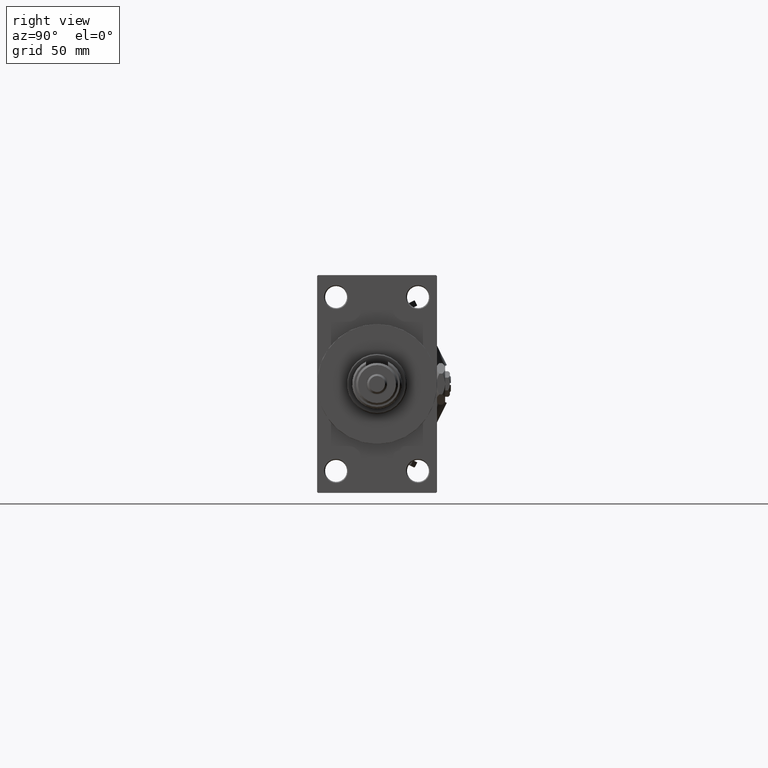
[diagram: clean part render]
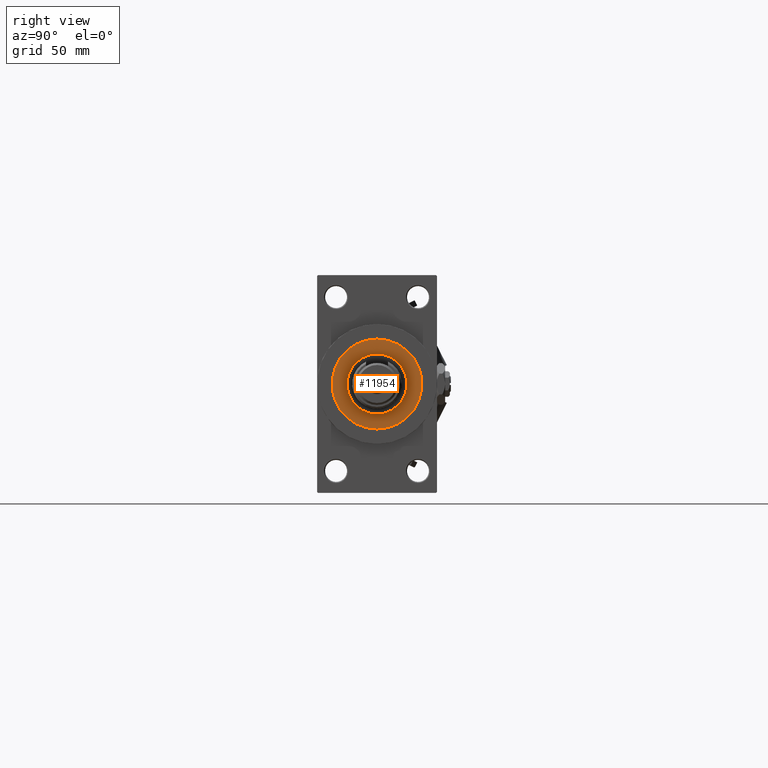
[diagram: same view with one face highlighted and labeled with its STEP entity id]
A machine part, right view. The second image highlights one B-rep face of the part: STEP entity #11954.
In plain terms, the highlighted planar face has unit normal (1, -0, -0).
Its self-contained STEP definition (entity closure, byte-faithful):
#56 = EDGE_CURVE ( 'NONE', #34542, #2193, #45051, .T. ) ;
#1901 = CARTESIAN_POINT ( 'NONE',  ( 15.00000000000000000, 1.836970198721029589E-15, 43.25999999999999801 ) ) ;
#2193 = VERTEX_POINT ( 'NONE', #10456 ) ;
#2270 = EDGE_CURVE ( 'NONE', #2193, #34542, #14200, .T. ) ;
#2284 = DIRECTION ( 'NONE',  ( 1.000000000000000000, 0.000000000000000000, 0.000000000000000000 ) ) ;
#2581 = DIRECTION ( 'NONE',  ( 0.000000000000000000, 0.000000000000000000, 1.000000000000000000 ) ) ;
#4114 = ORIENTED_EDGE ( 'NONE', *, *, #29759, .F. ) ;
#4700 = AXIS2_PLACEMENT_3D ( 'NONE', #36935, #48757, #24041 ) ;
#5266 = CARTESIAN_POINT ( 'NONE',  ( 22.50000000000000355, 2.755455298081545172E-15, 43.25999999999999801 ) ) ;
#6316 = DIRECTION ( 'NONE',  ( 0.000000000000000000, 0.000000000000000000, 1.000000000000000000 ) ) ;
#10456 = CARTESIAN_POINT ( 'NONE',  ( -22.50000000000000355, 0.000000000000000000, 43.25999999999999801 ) ) ;
#10712 = DIRECTION ( 'NONE',  ( 0.000000000000000000, 0.000000000000000000, 1.000000000000000000 ) ) ;
#11164 = AXIS2_PLACEMENT_3D ( 'NONE', #51224, #6316, #2284 ) ;
#11954 = ADVANCED_FACE ( 'NONE', ( #23465, #26436 ), #19408, .T. ) ;
#13427 = ORIENTED_EDGE ( 'NONE', *, *, #50670, .F. ) ;
#14200 = CIRCLE ( 'NONE', #44285, 22.50000000000000355 ) ;
#14465 = AXIS2_PLACEMENT_3D ( 'NONE', #35299, #51961, #27236 ) ;
#15757 = ORIENTED_EDGE ( 'NONE', *, *, #2270, .T. ) ;
#15802 = ORIENTED_EDGE ( 'NONE', *, *, #56, .T. ) ;
#16930 = CIRCLE ( 'NONE', #51307, 15.00000000000000000 ) ;
#17461 = EDGE_LOOP ( 'NONE', ( #4114, #13427 ) ) ;
#18971 = DIRECTION ( 'NONE',  ( 1.000000000000000000, 0.000000000000000000, 0.000000000000000000 ) ) ;
#19112 = VERTEX_POINT ( 'NONE', #1901 ) ;
#19408 = PLANE ( 'NONE',  #14465 ) ;
#21205 = EDGE_LOOP ( 'NONE', ( #15757, #15802 ) ) ;
#23465 = FACE_BOUND ( 'NONE', #17461, .T. ) ;
#24041 = DIRECTION ( 'NONE',  ( 1.000000000000000000, 0.000000000000000000, 0.000000000000000000 ) ) ;
#26436 = FACE_OUTER_BOUND ( 'NONE', #21205, .T. ) ;
#27236 = DIRECTION ( 'NONE',  ( 1.000000000000000000, 0.000000000000000000, -0.000000000000000000 ) ) ;
#29759 = EDGE_CURVE ( 'NONE', #39597, #19112, #16930, .T. ) ;
#31966 = CARTESIAN_POINT ( 'NONE',  ( 0.000000000000000000, 0.000000000000000000, 43.25999999999999801 ) ) ;
#34542 = VERTEX_POINT ( 'NONE', #5266 ) ;
#35299 = CARTESIAN_POINT ( 'NONE',  ( 0.000000000000000000, 0.000000000000000000, 43.25999999999999801 ) ) ;
#36935 = CARTESIAN_POINT ( 'NONE',  ( 0.000000000000000000, 0.000000000000000000, 43.25999999999999801 ) ) ;
#39416 = CARTESIAN_POINT ( 'NONE',  ( 0.000000000000000000, 0.000000000000000000, 43.25999999999999801 ) ) ;
#39597 = VERTEX_POINT ( 'NONE', #40810 ) ;
#40810 = CARTESIAN_POINT ( 'NONE',  ( -15.00000000000000000, 0.000000000000000000, 43.25999999999999801 ) ) ;
#44285 = AXIS2_PLACEMENT_3D ( 'NONE', #31966, #10712, #47813 ) ;
#45051 = CIRCLE ( 'NONE', #4700, 22.50000000000000355 ) ;
#47813 = DIRECTION ( 'NONE',  ( 1.000000000000000000, 0.000000000000000000, 0.000000000000000000 ) ) ;
#48092 = CIRCLE ( 'NONE', #11164, 15.00000000000000000 ) ;
#48757 = DIRECTION ( 'NONE',  ( 0.000000000000000000, 0.000000000000000000, 1.000000000000000000 ) ) ;
#50670 = EDGE_CURVE ( 'NONE', #19112, #39597, #48092, .T. ) ;
#51224 = CARTESIAN_POINT ( 'NONE',  ( 0.000000000000000000, 0.000000000000000000, 43.25999999999999801 ) ) ;
#51307 = AXIS2_PLACEMENT_3D ( 'NONE', #39416, #2581, #18971 ) ;
#51961 = DIRECTION ( 'NONE',  ( 0.000000000000000000, 0.000000000000000000, 1.000000000000000000 ) ) ;